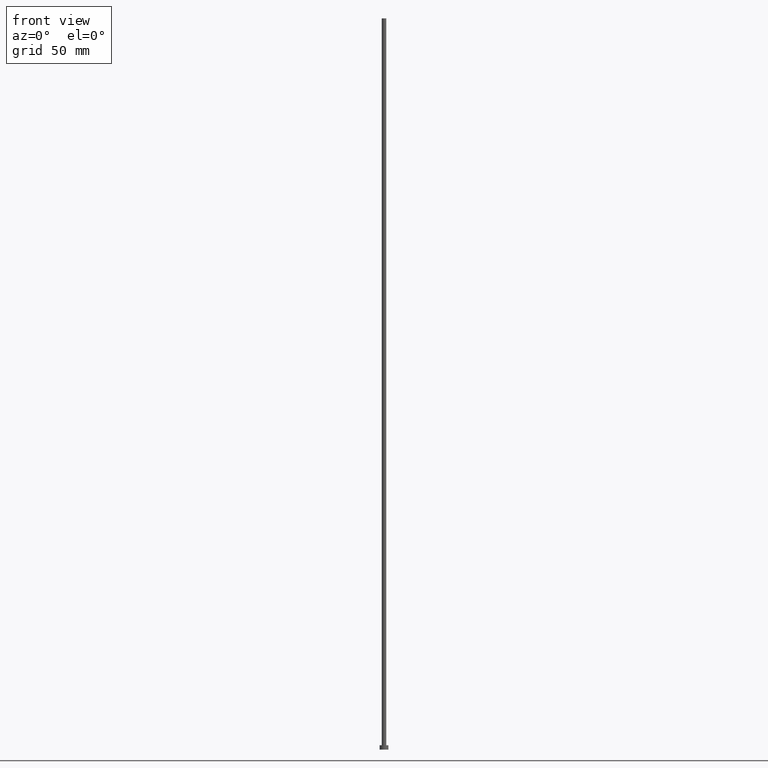
[diagram: clean part render]
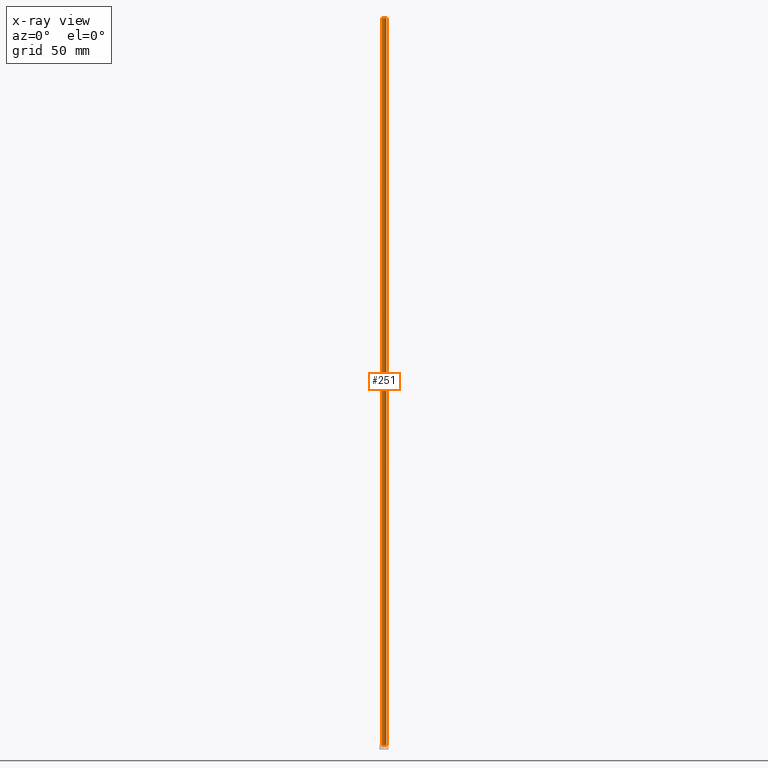
[diagram: x-ray — body ghosted, one internal face saturated and labeled with its STEP entity id]
A machine part, front view, then the same camera in x-ray: the body is ghosted and one INTERNAL B-rep face — a face not visible from any outside direction — is saturated and labeled: STEP entity #251.
In plain terms, the highlighted cylindrical surface (edge-blend (fillet) strip) has radius 1.5 mm, axis along (-0, -0, -1).
Its self-contained STEP definition (entity closure, byte-faithful):
#2 = DIRECTION ( 'NONE',  ( 1.000000000000000000, 0.000000000000000000, 0.000000000000000000 ) ) ;
#4 = CARTESIAN_POINT ( 'NONE',  ( 1.500000000000000222, 1.836970198721029934E-16, 500.0000000000000000 ) ) ;
#10 = EDGE_CURVE ( 'NONE', #184, #132, #147, .T. ) ;
#12 = CARTESIAN_POINT ( 'NONE',  ( 0.000000000000000000, 0.000000000000000000, 3.000000000000000000 ) ) ;
#19 = VERTEX_POINT ( 'NONE', #38 ) ;
#21 = DIRECTION ( 'NONE',  ( -1.000000000000000000, 0.000000000000000000, 0.000000000000000000 ) ) ;
#24 = DIRECTION ( 'NONE',  ( 0.000000000000000000, 0.000000000000000000, 1.000000000000000000 ) ) ;
#32 = VECTOR ( 'NONE', #199, 1000.000000000000000 ) ;
#36 = ORIENTED_EDGE ( 'NONE', *, *, #150, .F. ) ;
#37 = AXIS2_PLACEMENT_3D ( 'NONE', #12, #226, #145 ) ;
#38 = CARTESIAN_POINT ( 'NONE',  ( 1.500000000000000222, 1.836970198721029934E-16, 500.0000000000000000 ) ) ;
#58 = LINE ( 'NONE', #174, #204 ) ;
#59 = CARTESIAN_POINT ( 'NONE',  ( -1.500000000000000222, 0.000000000000000000, 3.000000000000000000 ) ) ;
#63 = EDGE_LOOP ( 'NONE', ( #36, #103, #91, #93 ) ) ;
#74 = CARTESIAN_POINT ( 'NONE',  ( 1.500000000000000222, 1.836970198721029934E-16, 3.000000000000000000 ) ) ;
#78 = LINE ( 'NONE', #4, #32 ) ;
#91 = ORIENTED_EDGE ( 'NONE', *, *, #10, .T. ) ;
#93 = ORIENTED_EDGE ( 'NONE', *, *, #200, .F. ) ;
#99 = CARTESIAN_POINT ( 'NONE',  ( -1.500000000000000222, 0.000000000000000000, 500.0000000000000000 ) ) ;
#103 = ORIENTED_EDGE ( 'NONE', *, *, #192, .T. ) ;
#110 = CIRCLE ( 'NONE', #250, 1.500000000000000222 ) ;
#128 = AXIS2_PLACEMENT_3D ( 'NONE', #156, #143, #21 ) ;
#132 = VERTEX_POINT ( 'NONE', #59 ) ;
#143 = DIRECTION ( 'NONE',  ( -0.000000000000000000, -0.000000000000000000, -1.000000000000000000 ) ) ;
#145 = DIRECTION ( 'NONE',  ( 1.000000000000000000, 0.000000000000000000, 0.000000000000000000 ) ) ;
#147 = CIRCLE ( 'NONE', #37, 1.500000000000000222 ) ;
#150 = EDGE_CURVE ( 'NONE', #19, #195, #110, .T. ) ;
#156 = CARTESIAN_POINT ( 'NONE',  ( 0.000000000000000000, 0.000000000000000000, 500.0000000000000000 ) ) ;
#174 = CARTESIAN_POINT ( 'NONE',  ( -1.500000000000000222, 0.000000000000000000, 500.0000000000000000 ) ) ;
#179 = FACE_OUTER_BOUND ( 'NONE', #63, .T. ) ;
#184 = VERTEX_POINT ( 'NONE', #74 ) ;
#192 = EDGE_CURVE ( 'NONE', #19, #184, #78, .T. ) ;
#195 = VERTEX_POINT ( 'NONE', #99 ) ;
#199 = DIRECTION ( 'NONE',  ( -0.000000000000000000, -0.000000000000000000, -1.000000000000000000 ) ) ;
#200 = EDGE_CURVE ( 'NONE', #195, #132, #58, .T. ) ;
#204 = VECTOR ( 'NONE', #234, 1000.000000000000000 ) ;
#217 = CYLINDRICAL_SURFACE ( 'NONE', #128, 1.500000000000000222 ) ;
#226 = DIRECTION ( 'NONE',  ( 0.000000000000000000, 0.000000000000000000, 1.000000000000000000 ) ) ;
#231 = CARTESIAN_POINT ( 'NONE',  ( 0.000000000000000000, 0.000000000000000000, 500.0000000000000000 ) ) ;
#234 = DIRECTION ( 'NONE',  ( -0.000000000000000000, -0.000000000000000000, -1.000000000000000000 ) ) ;
#250 = AXIS2_PLACEMENT_3D ( 'NONE', #231, #24, #2 ) ;
#251 = ADVANCED_FACE ( 'NONE', ( #179 ), #217, .T. ) ;